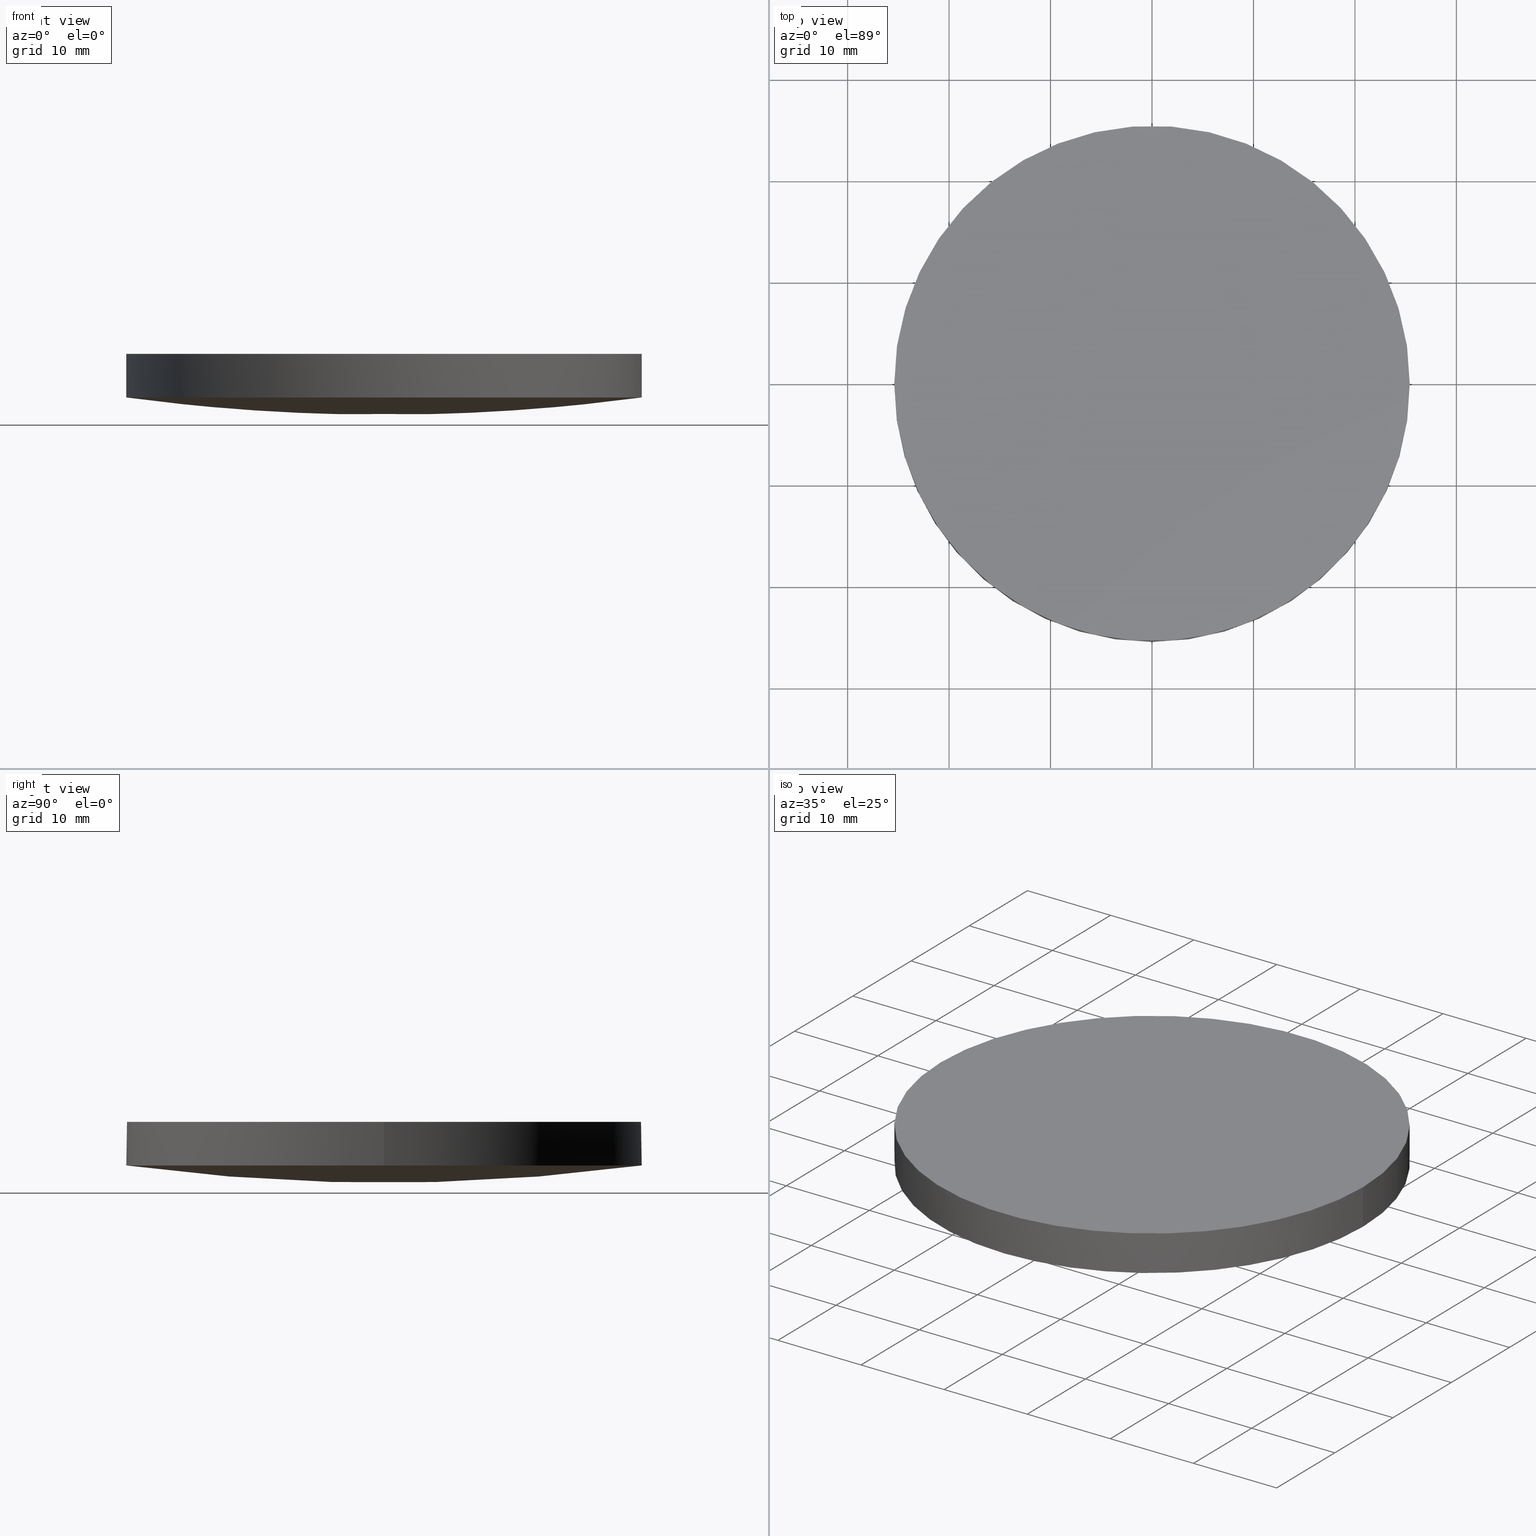
[diagram: canonical four-view strip — front | top / right | iso, engineering-drawing reading convention]
A machine part, canonical four-view strip (front | top / right | iso — engineering-drawing reading convention). The complete STEP part file that produces these views, byte-faithful:
ISO-10303-21;
HEADER;
FILE_DESCRIPTION (( 'STEP AP203' ),
    '1' );
FILE_NAME ('110-1523E UVFS pl-cx 50.8 F400.STEP',
    '2018-12-13T15:09:56',
    ( '' ),
    ( '' ),
    'SwSTEP 2.0',
    'SolidWorks 2017',
    '' );
FILE_SCHEMA (( 'CONFIG_CONTROL_DESIGN' ));
ENDSEC;

DATA;
#1 = VERTEX_POINT ( 'NONE', #43 ) ;
#2 = AXIS2_PLACEMENT_3D ( 'NONE', #113, #97, #161 ) ;
#3 = ADVANCED_BREP_SHAPE_REPRESENTATION ( '110-1523E UVFS pl-cx 50.8 F400', ( #125, #98 ), #174 ) ;
#4 = CALENDAR_DATE ( 2018, 13, 12 ) ;
#5 = ORIENTED_EDGE ( 'NONE', *, *, #126, .T. ) ;
#6 = CARTESIAN_POINT ( 'NONE',  ( -25.39999999999999900, 7.995584178184967200E-015, 1.701828307744319900 ) ) ;
#7 = CARTESIAN_POINT ( 'NONE',  ( 9.992007221626412800E-016, 4.884981308350691100E-015, 6.000000000000000000 ) ) ;
#8 = LOCAL_TIME ( 17, 9, 56.00000000000000000, #181 ) ;
#9 = CARTESIAN_POINT ( 'NONE',  ( -16.92308615580277800, -25.70294600501160100, 2.312552776829380100 ) ) ;
#10 = CARTESIAN_POINT ( 'NONE',  ( 16.92308615580274300, -25.70294600501159700, 2.312552776829398300 ) ) ;
#11 = COORDINATED_UNIVERSAL_TIME_OFFSET ( 2, 0, .AHEAD. ) ;
#12 = CARTESIAN_POINT ( 'NONE',  ( 17.13185817080187300, -8.620253173283165500, -0.007792046290208383800 ) ) ;
#13 = PERSON_AND_ORGANIZATION_ROLE ( 'creator' ) ;
#14 = CALENDAR_DATE ( 2018, 13, 12 ) ;
#15 = APPLICATION_PROTOCOL_DEFINITION ( 'international standard', 'config_control_design', 1994, #171 ) ;
#16 =( BOUNDED_SURFACE ( )  B_SPLINE_SURFACE ( 3, 3, ( 
 ( #99, #84, #10, #101 ),
 ( #197, #100, #12, #85 ),
 ( #167, #223, #117, #131 ),
 ( #26, #66, #224, #180 ) ),
 .UNSPECIFIED., .F., .F., .T. ) 
 B_SPLINE_SURFACE_WITH_KNOTS ( ( 4, 4 ),
 ( 4, 4 ),
 ( 0.0000000000000000000, 1.000000000000000000 ),
 ( 0.0000000000000000000, 1.000000000000000000 ),
 .UNSPECIFIED. ) 
 GEOMETRIC_REPRESENTATION_ITEM ( )  RATIONAL_B_SPLINE_SURFACE ( (
 ( 1.000000000000000000, 0.9984906929497666700, 0.9984906929497666700, 1.000000000000000000),
 ( 0.9938975684485722400, 0.9923974718413030000, 0.9923974718413030000, 0.9938975684485722400),
 ( 0.9938975684485722400, 0.9923974718413030000, 0.9923974718413030000, 0.9938975684485722400),
 ( 1.000000000000000000, 0.9984906929497666700, 0.9984906929497666700, 1.000000000000000000) ) ) 
 REPRESENTATION_ITEM ( '' )  SURFACE ( )  );
#17 = PERSON ( 'UNSPECIFIED', 'UNSPECIFIED', 'UNSPECIFIED', ('UNSPECIFIED'), ('UNSPECIFIED'), ('UNSPECIFIED') ) ;
#18 = CIRCLE ( 'NONE', #191, 25.39999999999999900 ) ;
#19 = APPROVAL ( #70, 'UNSPECIFIED' ) ;
#20 = AXIS2_PLACEMENT_3D ( 'NONE', #179, #95, #51 ) ;
#21 = LINE ( 'NONE', #187, #154 ) ;
#22 = ORIENTED_EDGE ( 'NONE', *, *, #155, .F. ) ;
#23 = CARTESIAN_POINT ( 'NONE',  ( -8.471132232603034500, 25.70294600501151500, 1.742854451087751900 ) ) ;
#24 = SHAPE_DEFINITION_REPRESENTATION ( #50, #3 ) ;
#25 = CC_DESIGN_PERSON_AND_ORGANIZATION_ASSIGNMENT ( #96, #188, ( #214 ) ) ;
#26 = CARTESIAN_POINT ( 'NONE',  ( -4.263256414560599900E-014, 25.70294600501151900, 1.742854451087766400 ) ) ;
#27 = CARTESIAN_POINT ( 'NONE',  ( -9.020562075079398200E-014, -8.620253173283169100, -0.5845184676352351800 ) ) ;
#28 = APPROVAL ( #134, 'UNSPECIFIED' ) ;
#29 = CARTESIAN_POINT ( 'NONE',  ( 9.992007221626412800E-016, 4.884981308350691100E-015, 1.701828307744319900 ) ) ;
#30 = EDGE_LOOP ( 'NONE', ( #156, #53 ) ) ;
#31 = CC_DESIGN_DATE_AND_TIME_ASSIGNMENT ( #47, #206, ( #157 ) ) ;
#32 =( NAMED_UNIT ( * ) SI_UNIT ( $, .STERADIAN. ) SOLID_ANGLE_UNIT ( ) );
#33 = APPLICATION_CONTEXT ( 'configuration controlled 3d designs of mechanical parts and assemblies' ) ;
#34 =( BOUNDED_SURFACE ( )  B_SPLINE_SURFACE ( 3, 3, ( 
 ( #64, #9, #184, #226 ),
 ( #201, #222, #49, #27 ),
 ( #150, #114, #129, #202 ),
 ( #196, #103, #23, #147 ) ),
 .UNSPECIFIED., .F., .F., .F. ) 
 B_SPLINE_SURFACE_WITH_KNOTS ( ( 4, 4 ),
 ( 4, 4 ),
 ( 0.0000000000000000000, 1.000000000000000000 ),
 ( 0.0000000000000000000, 1.000000000000000000 ),
 .UNSPECIFIED. ) 
 GEOMETRIC_REPRESENTATION_ITEM ( )  RATIONAL_B_SPLINE_SURFACE ( (
 ( 1.000000000000000000, 0.9984906929497666700, 0.9984906929497666700, 1.000000000000000000),
 ( 0.9938975684485722400, 0.9923974718413030000, 0.9923974718413030000, 0.9938975684485722400),
 ( 0.9938975684485722400, 0.9923974718413030000, 0.9923974718413030000, 0.9938975684485722400),
 ( 1.000000000000000000, 0.9984906929497666700, 0.9984906929497666700, 1.000000000000000000) ) ) 
 REPRESENTATION_ITEM ( '' )  SURFACE ( )  );
#35 = DIRECTION ( 'NONE',  ( 0.0000000000000000000, 0.0000000000000000000, 1.000000000000000000 ) ) ;
#36 = CALENDAR_DATE ( 2018, 13, 12 ) ;
#37 = VERTEX_POINT ( 'NONE', #160 ) ;
#38 = VERTEX_POINT ( 'NONE', #142 ) ;
#39 = ADVANCED_FACE ( 'NONE', ( #217 ), #81, .T. ) ;
#40 = COORDINATED_UNIVERSAL_TIME_OFFSET ( 2, 0, .AHEAD. ) ;
#41 = CIRCLE ( 'NONE', #148, 25.39999999999999900 ) ;
#42 = EDGE_CURVE ( 'NONE', #37, #133, #119, .T. ) ;
#43 = CARTESIAN_POINT ( 'NONE',  ( -4.263256414560599900E-014, 25.39999999999995900, 1.701828307744333000 ) ) ;
#44 = CC_DESIGN_APPROVAL ( #28, ( #212 ) ) ;
#45 = ORIENTED_EDGE ( 'NONE', *, *, #169, .F. ) ;
#46 = DIRECTION ( 'NONE',  ( 1.000000000000000000, 0.0000000000000000000, 0.0000000000000000000 ) ) ;
#47 = DATE_AND_TIME ( #105, #8 ) ;
#48 = CIRCLE ( 'NONE', #215, 190.4000000000000100 ) ;
#49 = CARTESIAN_POINT ( 'NONE',  ( -8.575636536915057600, -8.620253173283167300, -0.5845184676352330700 ) ) ;
#50 = PRODUCT_DEFINITION_SHAPE ( 'NONE', 'NONE',  #183 ) ;
#51 = DIRECTION ( 'NONE',  ( 1.000000000000000000, 0.0000000000000000000, 0.0000000000000000000 ) ) ;
#52 = DATE_AND_TIME ( #4, #55 ) ;
#53 = ORIENTED_EDGE ( 'NONE', *, *, #126, .F. ) ;
#54 = DATE_TIME_ROLE ( 'creation_date' ) ;
#55 = LOCAL_TIME ( 17, 9, 56.00000000000000000, #221 ) ;
#56 = VERTEX_POINT ( 'NONE', #146 ) ;
#57 = CC_DESIGN_PERSON_AND_ORGANIZATION_ASSIGNMENT ( #210, #13, ( #212 ) ) ;
#58 = PERSON_AND_ORGANIZATION ( #17, #90 ) ;
#59 = DIRECTION ( 'NONE',  ( -0.0000000000000000000, -0.0000000000000000000, -1.000000000000000000 ) ) ;
#60 = LOCAL_TIME ( 17, 9, 56.00000000000000000, #173 ) ;
#61 = CARTESIAN_POINT ( 'NONE',  ( 9.992007221626412800E-016, 4.884981308350691100E-015, 6.000000000000000000 ) ) ;
#62 = AXIS2_PLACEMENT_3D ( 'NONE', #168, #182, #63 ) ;
#63 = DIRECTION ( 'NONE',  ( 1.000000000000000000, 0.0000000000000000000, 0.0000000000000000000 ) ) ;
#64 = CARTESIAN_POINT ( 'NONE',  ( -25.31759198866573600, -25.70294600501160400, 3.449369879214042800 ) ) ;
#65 = ORIENTED_EDGE ( 'NONE', *, *, #71, .T. ) ;
#66 = CARTESIAN_POINT ( 'NONE',  ( 8.471132232602942100, 25.70294600501151500, 1.742854451087766600 ) ) ;
#67 = AXIS2_PLACEMENT_3D ( 'NONE', #7, #59, #46 ) ;
#68 = APPROVAL_STATUS ( 'not_yet_approved' ) ;
#69 = CC_DESIGN_SECURITY_CLASSIFICATION ( #157, ( #212 ) ) ;
#70 = APPROVAL_STATUS ( 'not_yet_approved' ) ;
#71 = EDGE_CURVE ( 'NONE', #178, #38, #74, .T. ) ;
#72 = DIRECTION ( 'NONE',  ( 1.000000000000000000, 0.0000000000000000000, 0.0000000000000000000 ) ) ;
#73 = ORIENTED_EDGE ( 'NONE', *, *, #204, .F. ) ;
#74 = CIRCLE ( 'NONE', #163, 25.39999999999999900 ) ;
#75 = CC_DESIGN_APPROVAL ( #135, ( #157 ) ) ;
#76 = PERSON_AND_ORGANIZATION ( #17, #90 ) ;
#77 = CIRCLE ( 'NONE', #62, 25.39999999999999900 ) ;
#78 = DIRECTION ( 'NONE',  ( -0.0000000000000000000, -0.0000000000000000000, -1.000000000000000000 ) ) ;
#79 = EDGE_LOOP ( 'NONE', ( #112, #139, #5, #83, #45 ) ) ;
#80 = DIRECTION ( 'NONE',  ( 1.000000000000000000, 0.0000000000000000000, 0.0000000000000000000 ) ) ;
#81 = PLANE ( 'NONE',  #2 ) ;
#82 = DIRECTION ( 'NONE',  ( -0.0000000000000000000, -0.0000000000000000000, -1.000000000000000000 ) ) ;
#83 = ORIENTED_EDGE ( 'NONE', *, *, #220, .F. ) ;
#84 = CARTESIAN_POINT ( 'NONE',  ( 8.471132232602942100, -25.70294600501159700, 1.742854451087738800 ) ) ;
#85 = CARTESIAN_POINT ( 'NONE',  ( 25.62992300475451300, -8.620253173283167300, 1.143049424638433700 ) ) ;
#86 = DIRECTION ( 'NONE',  ( 1.000000000000000000, 0.0000000000000000000, 0.0000000000000000000 ) ) ;
#87 = EDGE_LOOP ( 'NONE', ( #162, #109, #219 ) ) ;
#88 =( NAMED_UNIT ( * ) PLANE_ANGLE_UNIT ( ) SI_UNIT ( $, .RADIAN. ) );
#89 = PERSON_AND_ORGANIZATION_ROLE ( 'classification_officer' ) ;
#90 = ORGANIZATION ( 'UNSPECIFIED', 'UNSPECIFIED', '' ) ;
#91 = CIRCLE ( 'NONE', #231, 25.39999999999999900 ) ;
#92 = DIRECTION ( 'NONE',  ( -0.0000000000000000000, -0.0000000000000000000, -1.000000000000000000 ) ) ;
#93 = ORIENTED_EDGE ( 'NONE', *, *, #225, .T. ) ;
#94 = LOCAL_TIME ( 17, 9, 56.00000000000000000, #11 ) ;
#95 = DIRECTION ( 'NONE',  ( 0.0000000000000000000, 0.0000000000000000000, 1.000000000000000000 ) ) ;
#96 = PERSON_AND_ORGANIZATION ( #17, #90 ) ;
#97 = DIRECTION ( 'NONE',  ( 0.0000000000000000000, 0.0000000000000000000, 1.000000000000000000 ) ) ;
#98 = AXIS2_PLACEMENT_3D ( 'NONE', #120, #229, #136 ) ;
#99 = CARTESIAN_POINT ( 'NONE',  ( -4.263256414560599900E-014, -25.70294600501160100, 1.742854451087738600 ) ) ;
#100 = CARTESIAN_POINT ( 'NONE',  ( 8.575636536914967000, -8.620253173283163800, -0.5845184676352183100 ) ) ;
#101 = CARTESIAN_POINT ( 'NONE',  ( 25.31759198866574300, -25.70294600501160100, 3.449369879214070800 ) ) ;
#102 = PERSON_AND_ORGANIZATION ( #17, #90 ) ;
#103 = CARTESIAN_POINT ( 'NONE',  ( -16.92308615580278200, 25.70294600501151500, 2.312552776829408100 ) ) ;
#104 = CC_DESIGN_PERSON_AND_ORGANIZATION_ASSIGNMENT ( #143, #172, ( #212 ) ) ;
#105 = CALENDAR_DATE ( 2018, 13, 12 ) ;
#106 = APPROVAL_ROLE ( '' ) ;
#107 = CC_DESIGN_APPROVAL ( #19, ( #183 ) ) ;
#108 = CC_DESIGN_PERSON_AND_ORGANIZATION_ASSIGNMENT ( #58, #89, ( #157 ) ) ;
#109 = ORIENTED_EDGE ( 'NONE', *, *, #204, .T. ) ;
#110 = CARTESIAN_POINT ( 'NONE',  ( -25.39999999999999900, 7.995584178184967200E-015, 6.000000000000000000 ) ) ;
#111 = CARTESIAN_POINT ( 'NONE',  ( 9.992007221626412800E-016, 4.884981308350691100E-015, 1.701828307744319900 ) ) ;
#112 = ORIENTED_EDGE ( 'NONE', *, *, #225, .F. ) ;
#113 = CARTESIAN_POINT ( 'NONE',  ( 0.0000000000000000000, 52.02000000000000300, 6.000000000000000000 ) ) ;
#114 = CARTESIAN_POINT ( 'NONE',  ( -17.13185817080191600, 8.620253173283083800, -0.007792046290202092800 ) ) ;
#115 = LOCAL_TIME ( 17, 9, 56.00000000000000000, #40 ) ;
#116 = ORIENTED_EDGE ( 'NONE', *, *, #137, .F. ) ;
#117 = CARTESIAN_POINT ( 'NONE',  ( 17.13185817080187300, 8.620253173283085600, -0.007792046290183663900 ) ) ;
#118 = APPROVAL_ROLE ( '' ) ;
#119 = CIRCLE ( 'NONE', #67, 25.39999999999999900 ) ;
#120 = CARTESIAN_POINT ( 'NONE',  ( 0.0000000000000000000, 0.0000000000000000000, 0.0000000000000000000 ) ) ;
#121 = APPROVAL_ROLE ( '' ) ;
#122 = APPROVAL_PERSON_ORGANIZATION ( #199, #19, #106 ) ;
#123 = VECTOR ( 'NONE', #145, 1000.000000000000000 ) ;
#124 = EDGE_LOOP ( 'NONE', ( #116, #213, #22, #228, #127 ) ) ;
#125 = MANIFOLD_SOLID_BREP ( 'Imported1', #176 ) ;
#126 = EDGE_CURVE ( 'NONE', #133, #37, #41, .T. ) ;
#127 = ORIENTED_EDGE ( 'NONE', *, *, #42, .T. ) ;
#128 = DIRECTION ( 'NONE',  ( 0.0000000000000000000, 0.0000000000000000000, 1.000000000000000000 ) ) ;
#129 = CARTESIAN_POINT ( 'NONE',  ( -8.575636536915059300, 8.620253173283083800, -0.5845184676352083200 ) ) ;
#130 = DIRECTION ( 'NONE',  ( 1.000000000000000000, 0.0000000000000000000, 0.0000000000000000000 ) ) ;
#131 = CARTESIAN_POINT ( 'NONE',  ( 25.62992300475451300, 8.620253173283083800, 1.143049424638458600 ) ) ;
#132 = PERSON_AND_ORGANIZATION ( #17, #90 ) ;
#133 = VERTEX_POINT ( 'NONE', #110 ) ;
#134 = APPROVAL_STATUS ( 'not_yet_approved' ) ;
#135 = APPROVAL ( #68, 'UNSPECIFIED' ) ;
#136 = DIRECTION ( 'NONE',  ( 1.000000000000000000, 0.0000000000000000000, 0.0000000000000000000 ) ) ;
#137 = EDGE_CURVE ( 'NONE', #38, #133, #211, .T. ) ;
#138 = ADVANCED_FACE ( 'NONE', ( #144 ), #200, .T. ) ;
#139 = ORIENTED_EDGE ( 'NONE', *, *, #137, .T. ) ;
#140 = ADVANCED_FACE ( 'NONE', ( #234 ), #205, .T. ) ;
#141 = CARTESIAN_POINT ( 'NONE',  ( 9.992007221626412800E-016, 4.884981308350691100E-015, 1.701828307744319900 ) ) ;
#142 = CARTESIAN_POINT ( 'NONE',  ( -25.39999999999999900, 7.995584178184967200E-015, 1.701828307744319900 ) ) ;
#143 = PERSON_AND_ORGANIZATION ( #17, #90 ) ;
#144 = FACE_OUTER_BOUND ( 'NONE', #124, .T. ) ;
#145 = DIRECTION ( 'NONE',  ( 0.0000000000000000000, 0.0000000000000000000, 1.000000000000000000 ) ) ;
#146 = CARTESIAN_POINT ( 'NONE',  ( 25.39999999999999900, 4.884981308350691100E-015, 1.701828307744319900 ) ) ;
#147 = CARTESIAN_POINT ( 'NONE',  ( -9.020562075079396900E-014, 25.70294600501151900, 1.742854451087749500 ) ) ;
#148 = AXIS2_PLACEMENT_3D ( 'NONE', #61, #78, #218 ) ;
#149 = APPROVAL_DATE_TIME ( #190, #28 ) ;
#150 = CARTESIAN_POINT ( 'NONE',  ( -25.62992300475450900, 8.620253173283083800, 1.143049424638430000 ) ) ;
#151 = CALENDAR_DATE ( 2018, 13, 12 ) ;
#152 = PERSON_AND_ORGANIZATION_ROLE ( 'creator' ) ;
#153 = APPROVAL_DATE_TIME ( #195, #19 ) ;
#154 = VECTOR ( 'NONE', #35, 1000.000000000000000 ) ;
#155 = EDGE_CURVE ( 'NONE', #56, #178, #77, .T. ) ;
#156 = ORIENTED_EDGE ( 'NONE', *, *, #42, .F. ) ;
#157 = SECURITY_CLASSIFICATION ( '', '', #235 ) ;
#158 = AXIS2_PLACEMENT_3D ( 'NONE', #141, #128, #80 ) ;
#159 = FACE_OUTER_BOUND ( 'NONE', #170, .T. ) ;
#160 = CARTESIAN_POINT ( 'NONE',  ( 25.39999999999999900, 4.884981308350691100E-015, 6.000000000000000000 ) ) ;
#161 = DIRECTION ( 'NONE',  ( 1.000000000000000000, 0.0000000000000000000, -0.0000000000000000000 ) ) ;
#162 = ORIENTED_EDGE ( 'NONE', *, *, #155, .T. ) ;
#163 = AXIS2_PLACEMENT_3D ( 'NONE', #111, #177, #194 ) ;
#164 = APPROVAL_PERSON_ORGANIZATION ( #102, #135, #121 ) ;
#165 = CARTESIAN_POINT ( 'NONE',  ( 9.992007221626412800E-016, 4.884981308350691100E-015, 1.701828307744319900 ) ) ;
#166 = FACE_OUTER_BOUND ( 'NONE', #87, .T. ) ;
#167 = CARTESIAN_POINT ( 'NONE',  ( -4.263256414560600500E-014, 8.620253173283085600, -0.5845184676351937700 ) ) ;
#168 = CARTESIAN_POINT ( 'NONE',  ( 9.992007221626412800E-016, 4.884981308350691100E-015, 1.701828307744319900 ) ) ;
#169 = EDGE_CURVE ( 'NONE', #1, #56, #18, .T. ) ;
#170 = EDGE_LOOP ( 'NONE', ( #73, #65, #93 ) ) ;
#171 = APPLICATION_CONTEXT ( 'configuration controlled 3d designs of mechanical parts and assemblies' ) ;
#172 = PERSON_AND_ORGANIZATION_ROLE ( 'design_supplier' ) ;
#173 = COORDINATED_UNIVERSAL_TIME_OFFSET ( 2, 0, .AHEAD. ) ;
#174 =( GEOMETRIC_REPRESENTATION_CONTEXT ( 3 ) GLOBAL_UNCERTAINTY_ASSIGNED_CONTEXT ( ( #208 ) ) GLOBAL_UNIT_ASSIGNED_CONTEXT ( ( #230, #88, #32 ) ) REPRESENTATION_CONTEXT ( 'NONE', 'WORKASPACE' ) );
#175 = ADVANCED_FACE ( 'NONE', ( #166 ), #16, .T. ) ;
#176 = CLOSED_SHELL ( 'NONE', ( #175, #140, #192, #138, #39 ) ) ;
#177 = DIRECTION ( 'NONE',  ( -0.0000000000000000000, -0.0000000000000000000, -1.000000000000000000 ) ) ;
#178 = VERTEX_POINT ( 'NONE', #198 ) ;
#179 = CARTESIAN_POINT ( 'NONE',  ( 9.992007221626412800E-016, 4.884981308350691100E-015, 1.701828307744319900 ) ) ;
#180 = CARTESIAN_POINT ( 'NONE',  ( 25.31759198866574300, 25.70294600501151900, 3.449369879214098300 ) ) ;
#181 = COORDINATED_UNIVERSAL_TIME_OFFSET ( 2, 0, .AHEAD. ) ;
#182 = DIRECTION ( 'NONE',  ( -0.0000000000000000000, -0.0000000000000000000, -1.000000000000000000 ) ) ;
#183 = PRODUCT_DEFINITION ( 'UNKNOWN', '', #212, #227 ) ;
#184 = CARTESIAN_POINT ( 'NONE',  ( -8.471132232603032700, -25.70294600501159700, 1.742854451087725100 ) ) ;
#185 = APPROVAL_DATE_TIME ( #52, #135 ) ;
#186 = PRODUCT_RELATED_PRODUCT_CATEGORY ( 'detail', '', ( #214 ) ) ;
#187 = CARTESIAN_POINT ( 'NONE',  ( 25.39999999999999900, 4.884981308350691100E-015, 1.701828307744319900 ) ) ;
#188 = PERSON_AND_ORGANIZATION_ROLE ( 'design_owner' ) ;
#189 = APPLICATION_PROTOCOL_DEFINITION ( 'international standard', 'config_control_design', 1994, #33 ) ;
#190 = DATE_AND_TIME ( #151, #115 ) ;
#191 = AXIS2_PLACEMENT_3D ( 'NONE', #165, #82, #130 ) ;
#192 = ADVANCED_FACE ( 'NONE', ( #159 ), #34, .T. ) ;
#193 = CC_DESIGN_PERSON_AND_ORGANIZATION_ASSIGNMENT ( #76, #152, ( #183 ) ) ;
#194 = DIRECTION ( 'NONE',  ( 1.000000000000000000, 0.0000000000000000000, 0.0000000000000000000 ) ) ;
#195 = DATE_AND_TIME ( #14, #60 ) ;
#196 = CARTESIAN_POINT ( 'NONE',  ( -25.31759198866574000, 25.70294600501151500, 3.449369879214070300 ) ) ;
#197 = CARTESIAN_POINT ( 'NONE',  ( -4.263256414560600500E-014, -8.620253173283165500, -0.5845184676352183100 ) ) ;
#198 = CARTESIAN_POINT ( 'NONE',  ( -4.263256414560599900E-014, -25.40000000000001300, 1.701828307744305300 ) ) ;
#199 = PERSON_AND_ORGANIZATION ( #17, #90 ) ;
#200 = CYLINDRICAL_SURFACE ( 'NONE', #158, 25.39999999999999900 ) ;
#201 = CARTESIAN_POINT ( 'NONE',  ( -25.62992300475450900, -8.620253173283169100, 1.143049424638404900 ) ) ;
#202 = CARTESIAN_POINT ( 'NONE',  ( -9.367506770274757000E-014, 8.620253173283083800, -0.5845184676352106500 ) ) ;
#203 = MECHANICAL_CONTEXT ( 'NONE', #171, 'mechanical' ) ;
#204 = EDGE_CURVE ( 'NONE', #178, #1, #48, .T. ) ;
#205 = CYLINDRICAL_SURFACE ( 'NONE', #20, 25.39999999999999900 ) ;
#206 = DATE_TIME_ROLE ( 'classification_date' ) ;
#207 = DIRECTION ( 'NONE',  ( 0.0000000000000000000, -1.000000000000000000, -5.831003280594309600E-016 ) ) ;
#208 = UNCERTAINTY_MEASURE_WITH_UNIT (LENGTH_MEASURE( 1.000000000000000100E-005 ), #230, 'distance_accuracy_value', 'NONE');
#209 = CC_DESIGN_DATE_AND_TIME_ASSIGNMENT ( #233, #54, ( #183 ) ) ;
#210 = PERSON_AND_ORGANIZATION ( #17, #90 ) ;
#211 = LINE ( 'NONE', #6, #123 ) ;
#212 = PRODUCT_DEFINITION_FORMATION_WITH_SPECIFIED_SOURCE ( 'ANY', '', #214, .NOT_KNOWN. ) ;
#213 = ORIENTED_EDGE ( 'NONE', *, *, #71, .F. ) ;
#214 = PRODUCT ( '110-1523E UVFS pl-cx 50.8 F400', '110-1523E UVFS pl-cx 50.8 F400', '', ( #203 ) ) ;
#215 = AXIS2_PLACEMENT_3D ( 'NONE', #232, #86, #207 ) ;
#216 = APPROVAL_PERSON_ORGANIZATION ( #132, #28, #118 ) ;
#217 = FACE_OUTER_BOUND ( 'NONE', #30, .T. ) ;
#218 = DIRECTION ( 'NONE',  ( 1.000000000000000000, 0.0000000000000000000, 0.0000000000000000000 ) ) ;
#219 = ORIENTED_EDGE ( 'NONE', *, *, #169, .T. ) ;
#220 = EDGE_CURVE ( 'NONE', #56, #37, #21, .T. ) ;
#221 = COORDINATED_UNIVERSAL_TIME_OFFSET ( 2, 0, .AHEAD. ) ;
#222 = CARTESIAN_POINT ( 'NONE',  ( -17.13185817080191200, -8.620253173283167300, -0.007792046290226812600 ) ) ;
#223 = CARTESIAN_POINT ( 'NONE',  ( 8.575636536914965200, 8.620253173283087400, -0.5845184676351936600 ) ) ;
#224 = CARTESIAN_POINT ( 'NONE',  ( 16.92308615580273900, 25.70294600501151500, 2.312552776829426300 ) ) ;
#225 = EDGE_CURVE ( 'NONE', #38, #1, #91, .T. ) ;
#226 = CARTESIAN_POINT ( 'NONE',  ( -9.020562075079396900E-014, -25.70294600501160100, 1.742854451087722600 ) ) ;
#227 = DESIGN_CONTEXT ( 'detailed design', #33, 'design' ) ;
#228 = ORIENTED_EDGE ( 'NONE', *, *, #220, .T. ) ;
#229 = DIRECTION ( 'NONE',  ( 0.0000000000000000000, 0.0000000000000000000, 1.000000000000000000 ) ) ;
#230 =( LENGTH_UNIT ( ) NAMED_UNIT ( * ) SI_UNIT ( .MILLI., .METRE. ) );
#231 = AXIS2_PLACEMENT_3D ( 'NONE', #29, #92, #72 ) ;
#232 = CARTESIAN_POINT ( 'NONE',  ( -4.263256414560599900E-014, -5.684341886080800200E-014, 190.4000000000000100 ) ) ;
#233 = DATE_AND_TIME ( #36, #94 ) ;
#234 = FACE_OUTER_BOUND ( 'NONE', #79, .T. ) ;
#235 = SECURITY_CLASSIFICATION_LEVEL ( 'unclassified' ) ;
ENDSEC;
END-ISO-10303-21;
